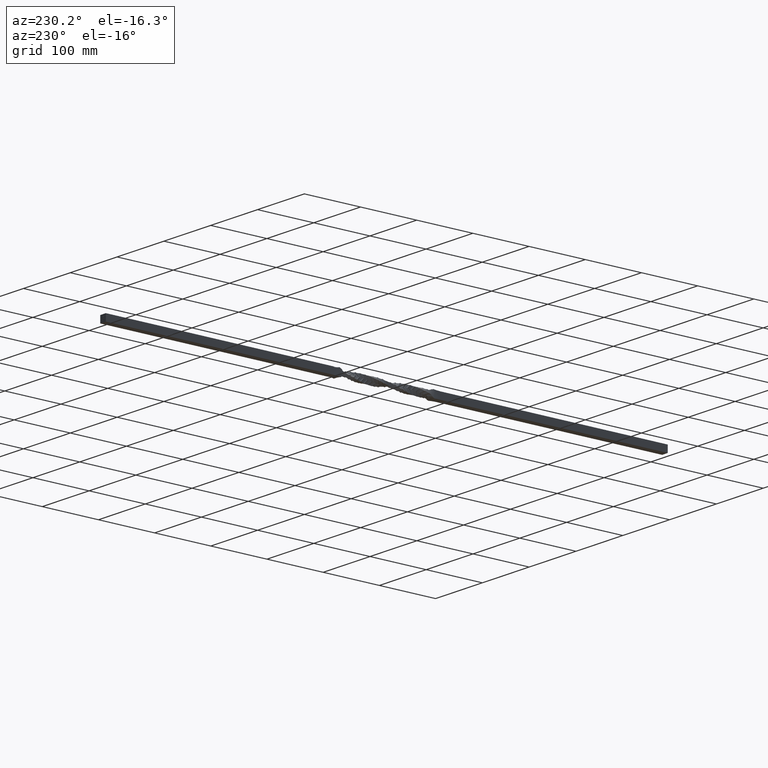
[diagram: clean part render]
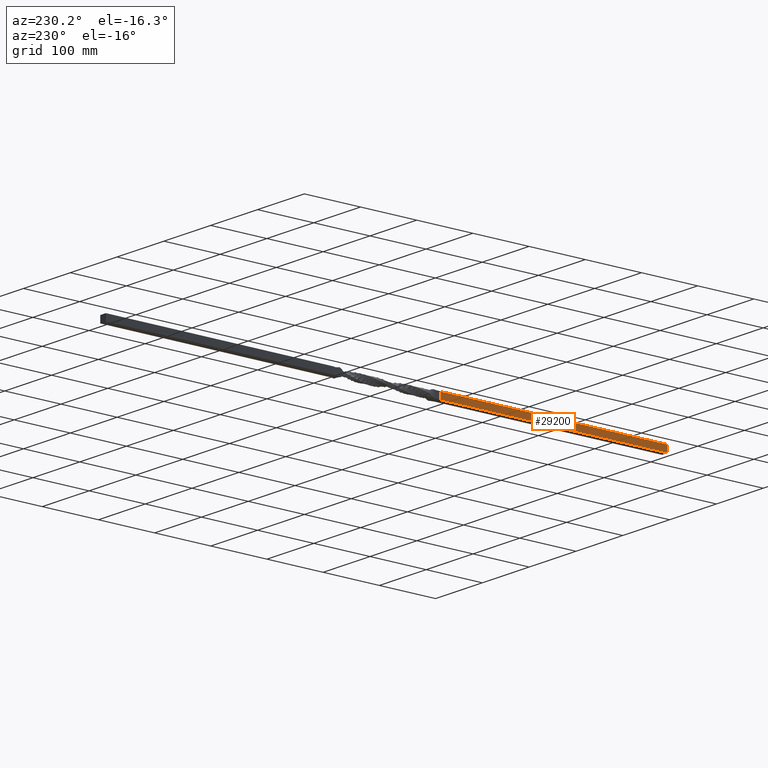
[diagram: same view with one face highlighted and labeled with its STEP entity id]
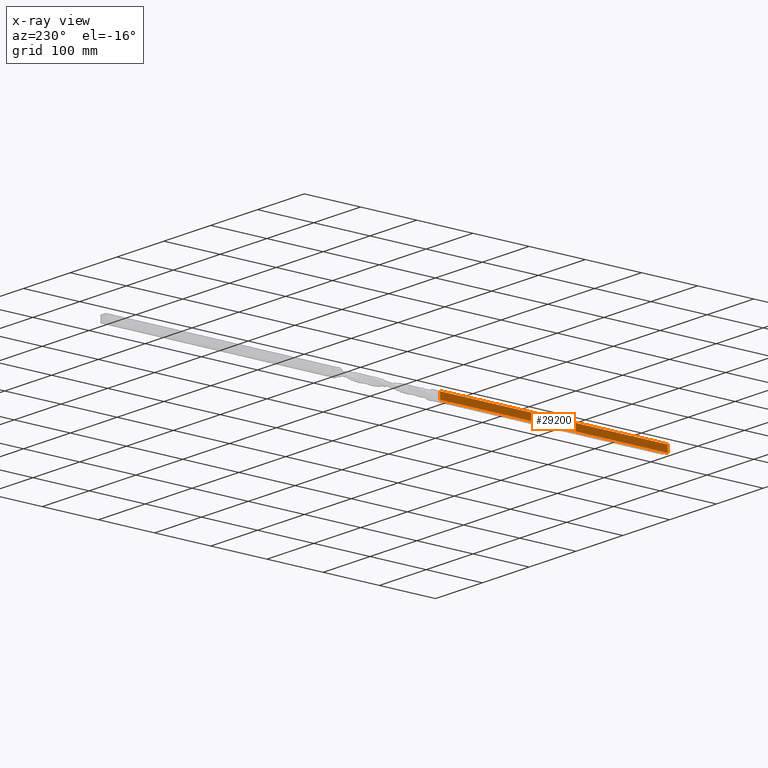
[diagram: x-ray of the same camera — body ghosted, the highlighted face saturated]
A machine part, auxiliary view. The second image highlights one B-rep face of the part: STEP entity #29200.
The next image is the same camera in x-ray: the body ghosted, the highlighted face saturated — about 0% of this face is hidden behind the body in this view.
In plain terms, the highlighted planar face has unit normal (1, 0, 0).
Its self-contained STEP definition (entity closure, byte-faithful):
#2434 = CARTESIAN_POINT ( 'NONE',  ( -5.999999999999999112, -425.0000000000000568, 6.000000000000000888 ) ) ;
#3096 = ORIENTED_EDGE ( 'NONE', *, *, #67043, .T. ) ;
#4704 = VECTOR ( 'NONE', #49043, 1000.000000000000000 ) ;
#5309 = CARTESIAN_POINT ( 'NONE',  ( -5.999999999999999112, -425.0000000000000568, 6.000000000000000888 ) ) ;
#6427 = ORIENTED_EDGE ( 'NONE', *, *, #36447, .F. ) ;
#6663 = VECTOR ( 'NONE', #74295, 1000.000000000000000 ) ;
#6944 = CARTESIAN_POINT ( 'NONE',  ( -6.000000000000000888, -20.00000000000000000, -6.000000000000002665 ) ) ;
#7085 = EDGE_CURVE ( 'NONE', #79119, #69960, #29735, .T. ) ;
#7380 = DIRECTION ( 'NONE',  ( 0.000000000000000000, 0.000000000000000000, -1.000000000000000000 ) ) ;
#12002 = EDGE_CURVE ( 'NONE', #13582, #79119, #22251, .T. ) ;
#13582 = VERTEX_POINT ( 'NONE', #61309 ) ;
#13834 = VECTOR ( 'NONE', #31708, 1000.000000000000000 ) ;
#14038 = ORIENTED_EDGE ( 'NONE', *, *, #7085, .T. ) ;
#14679 = DIRECTION ( 'NONE',  ( 1.000000000000000000, 0.000000000000000000, 0.000000000000000000 ) ) ;
#16390 = CARTESIAN_POINT ( 'NONE',  ( -5.999999999999999112, -425.0000000000000568, -6.000000000000000888 ) ) ;
#17837 = VECTOR ( 'NONE', #42521, 1000.000000000000000 ) ;
#18547 = CARTESIAN_POINT ( 'NONE',  ( -5.999999999999999112, -425.0000000000000568, -6.000000000000000888 ) ) ;
#19931 = LINE ( 'NONE', #16390, #17837 ) ;
#21340 = LINE ( 'NONE', #40889, #6663 ) ;
#22251 = LINE ( 'NONE', #63103, #13834 ) ;
#26272 = VECTOR ( 'NONE', #84118, 1000.000000000000000 ) ;
#28286 = EDGE_LOOP ( 'NONE', ( #36260, #14038, #3096, #57064, #6427, #46802 ) ) ;
#28372 = LINE ( 'NONE', #30131, #26272 ) ;
#29200 = ADVANCED_FACE ( 'NONE', ( #41066 ), #74495, .F. ) ;
#29735 = LINE ( 'NONE', #6944, #82169 ) ;
#30131 = CARTESIAN_POINT ( 'NONE',  ( -5.999999999999999112, -425.0000000000000568, 6.000000000000000888 ) ) ;
#30588 = AXIS2_PLACEMENT_3D ( 'NONE', #81554, #14679, #7380 ) ;
#31708 = DIRECTION ( 'NONE',  ( 1.445602896647339163E-16, -0.000000000000000000, -1.000000000000000000 ) ) ;
#35487 = VERTEX_POINT ( 'NONE', #18547 ) ;
#36260 = ORIENTED_EDGE ( 'NONE', *, *, #12002, .T. ) ;
#36447 = EDGE_CURVE ( 'NONE', #63276, #35487, #28372, .T. ) ;
#36919 = EDGE_CURVE ( 'NONE', #35487, #84613, #19931, .T. ) ;
#40889 = CARTESIAN_POINT ( 'NONE',  ( -6.000000000000000888, -20.00000000000000000, -6.000000000000002665 ) ) ;
#41066 = FACE_OUTER_BOUND ( 'NONE', #28286, .T. ) ;
#42521 = DIRECTION ( 'NONE',  ( -0.000000000000000000, 1.000000000000000000, -0.000000000000000000 ) ) ;
#46802 = ORIENTED_EDGE ( 'NONE', *, *, #61214, .T. ) ;
#49043 = DIRECTION ( 'NONE',  ( -0.000000000000000000, 1.000000000000000000, -0.000000000000000000 ) ) ;
#57064 = ORIENTED_EDGE ( 'NONE', *, *, #36919, .F. ) ;
#60845 = CARTESIAN_POINT ( 'NONE',  ( -6.000000000000000888, -20.00000000000000000, -4.146658011965019597 ) ) ;
#61214 = EDGE_CURVE ( 'NONE', #63276, #13582, #83398, .T. ) ;
#61309 = CARTESIAN_POINT ( 'NONE',  ( -6.000000000000002665, -20.00000000000000000, 5.999999999999997335 ) ) ;
#63103 = CARTESIAN_POINT ( 'NONE',  ( -6.000000000000000888, -20.00000000000000000, -6.000000000000002665 ) ) ;
#63276 = VERTEX_POINT ( 'NONE', #5309 ) ;
#67043 = EDGE_CURVE ( 'NONE', #69960, #84613, #21340, .T. ) ;
#69960 = VERTEX_POINT ( 'NONE', #86793 ) ;
#70427 = CARTESIAN_POINT ( 'NONE',  ( -6.000000000000000888, -20.00000000000000000, -6.000000000000002665 ) ) ;
#74295 = DIRECTION ( 'NONE',  ( 1.445602896647339163E-16, -0.000000000000000000, -1.000000000000000000 ) ) ;
#74495 = PLANE ( 'NONE',  #30588 ) ;
#79119 = VERTEX_POINT ( 'NONE', #60845 ) ;
#81554 = CARTESIAN_POINT ( 'NONE',  ( -5.999999999999999112, -425.0000000000000568, 6.000000000000000888 ) ) ;
#82169 = VECTOR ( 'NONE', #86279, 1000.000000000000000 ) ;
#83398 = LINE ( 'NONE', #2434, #4704 ) ;
#84118 = DIRECTION ( 'NONE',  ( 0.000000000000000000, 0.000000000000000000, -1.000000000000000000 ) ) ;
#84613 = VERTEX_POINT ( 'NONE', #70427 ) ;
#86279 = DIRECTION ( 'NONE',  ( 1.445602896647339163E-16, -0.000000000000000000, -1.000000000000000000 ) ) ;
#86793 = CARTESIAN_POINT ( 'NONE',  ( -6.000000000000000888, -20.00000000000000000, -4.598320860679653066 ) ) ;